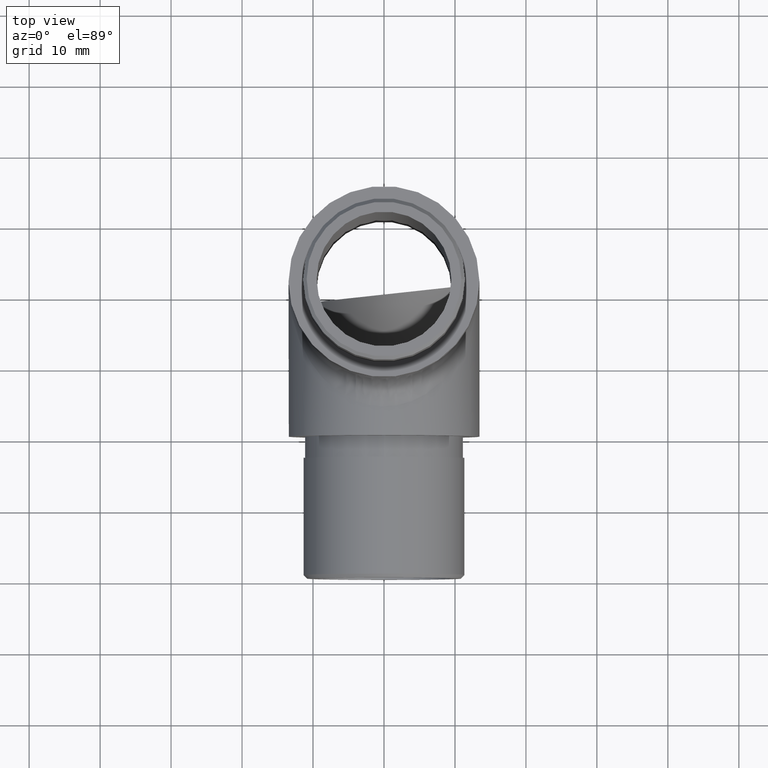
[diagram: clean part render]
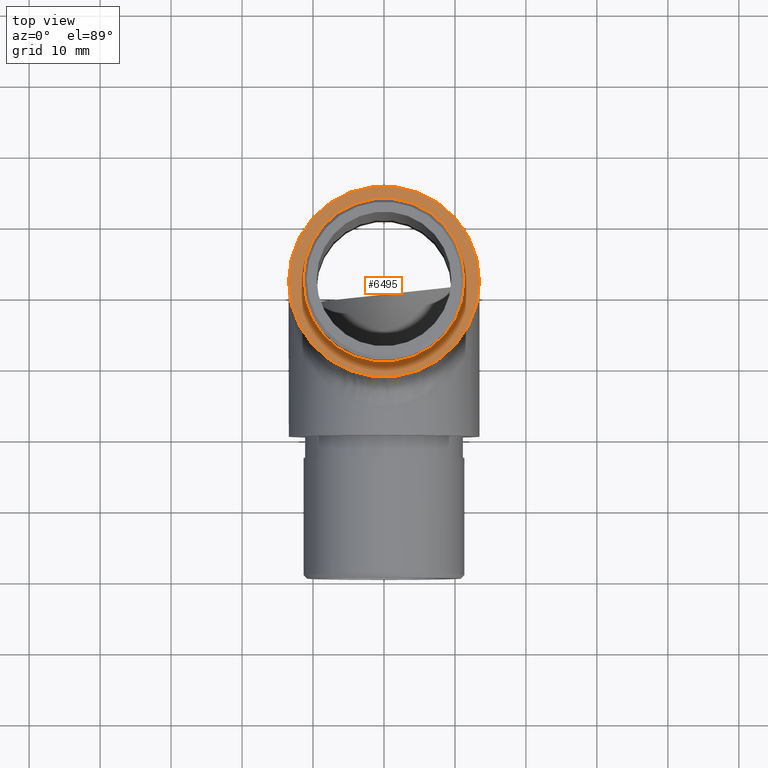
[diagram: same view with one face highlighted and labeled with its STEP entity id]
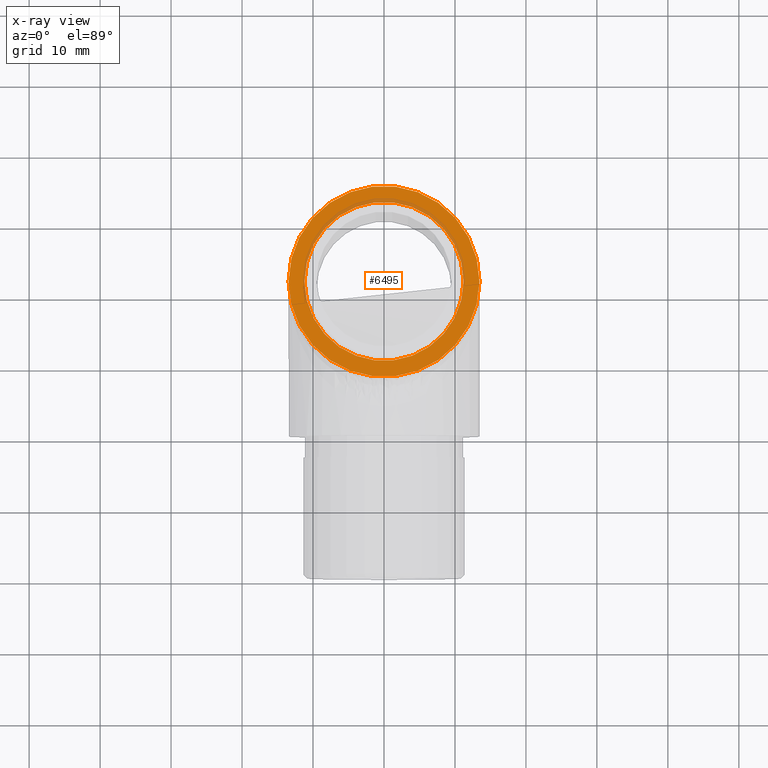
[diagram: x-ray of the same camera — body ghosted, the highlighted face saturated]
A machine part, top view. The second image highlights one B-rep face of the part: STEP entity #6495.
The next image is the same camera in x-ray: the body ghosted, the highlighted face saturated — about 10% of this face is hidden behind the body in this view.
In plain terms, the highlighted planar face has unit normal (0, 0, 1).
Its self-contained STEP definition (entity closure, byte-faithful):
#306 = DIRECTION ( 'NONE',  ( 0.0000000000000000000, 0.0000000000000000000, 1.000000000000000000 ) ) ;
#356 = DIRECTION ( 'NONE',  ( 0.0000000000000000000, 0.0000000000000000000, 1.000000000000000000 ) ) ;
#1377 = EDGE_LOOP ( 'NONE', ( #6971 ) ) ;
#1475 = CARTESIAN_POINT ( 'NONE',  ( 13.45000000000000100, 41.50000000000000000, 21.50000000000000000 ) ) ;
#2383 = EDGE_LOOP ( 'NONE', ( #12290 ) ) ;
#3280 = CARTESIAN_POINT ( 'NONE',  ( 11.20000000000000100, 41.50000000000000000, 21.50000000000000000 ) ) ;
#3516 = EDGE_CURVE ( 'NONE', #6301, #6301, #8951, .T. ) ;
#3916 = EDGE_CURVE ( 'NONE', #5194, #5194, #5243, .T. ) ;
#4583 = CARTESIAN_POINT ( 'NONE',  ( 0.0000000000000000000, 41.50000000000000000, 21.50000000000000000 ) ) ;
#4636 = DIRECTION ( 'NONE',  ( 1.000000000000000000, 0.0000000000000000000, 0.0000000000000000000 ) ) ;
#5194 = VERTEX_POINT ( 'NONE', #1475 ) ;
#5232 = AXIS2_PLACEMENT_3D ( 'NONE', #4583, #12433, #4636 ) ;
#5243 = CIRCLE ( 'NONE', #6140, 13.45000000000000100 ) ;
#5516 = FACE_OUTER_BOUND ( 'NONE', #1377, .T. ) ;
#6140 = AXIS2_PLACEMENT_3D ( 'NONE', #11225, #356, #6366 ) ;
#6166 = PLANE ( 'NONE',  #7062 ) ;
#6301 = VERTEX_POINT ( 'NONE', #3280 ) ;
#6366 = DIRECTION ( 'NONE',  ( 1.000000000000000000, 0.0000000000000000000, 0.0000000000000000000 ) ) ;
#6495 = ADVANCED_FACE ( 'NONE', ( #5516, #11422 ), #6166, .T. ) ;
#6971 = ORIENTED_EDGE ( 'NONE', *, *, #3916, .T. ) ;
#7062 = AXIS2_PLACEMENT_3D ( 'NONE', #11122, #306, #12170 ) ;
#8951 = CIRCLE ( 'NONE', #5232, 11.20000000000000100 ) ;
#11122 = CARTESIAN_POINT ( 'NONE',  ( 0.0000000000000000000, 41.50000000000000000, 21.50000000000000000 ) ) ;
#11225 = CARTESIAN_POINT ( 'NONE',  ( 0.0000000000000000000, 41.50000000000000000, 21.50000000000000000 ) ) ;
#11422 = FACE_BOUND ( 'NONE', #2383, .T. ) ;
#12170 = DIRECTION ( 'NONE',  ( 1.000000000000000000, 0.0000000000000000000, -0.0000000000000000000 ) ) ;
#12290 = ORIENTED_EDGE ( 'NONE', *, *, #3516, .F. ) ;
#12433 = DIRECTION ( 'NONE',  ( 0.0000000000000000000, 0.0000000000000000000, 1.000000000000000000 ) ) ;